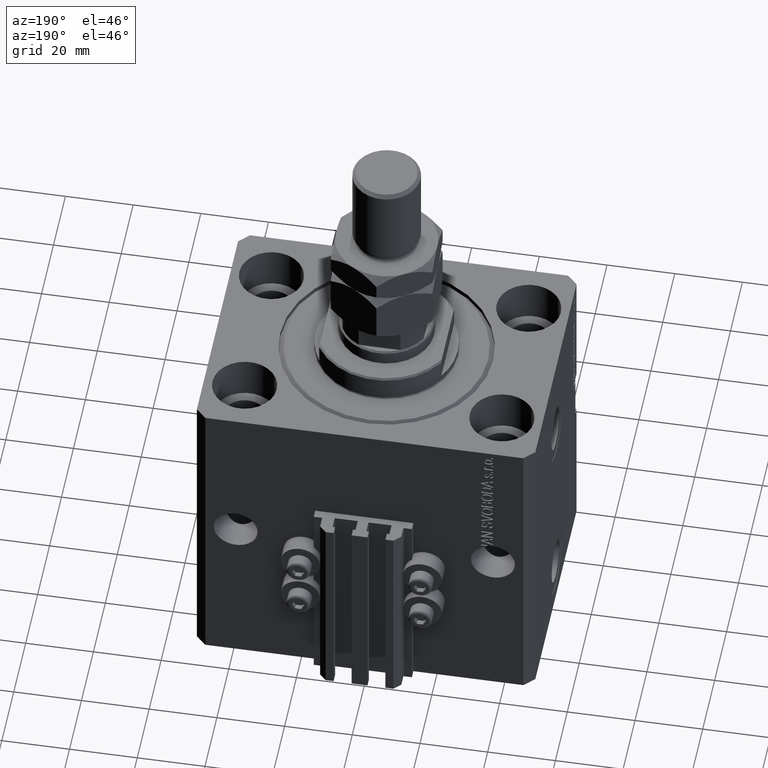
[diagram: clean part render]
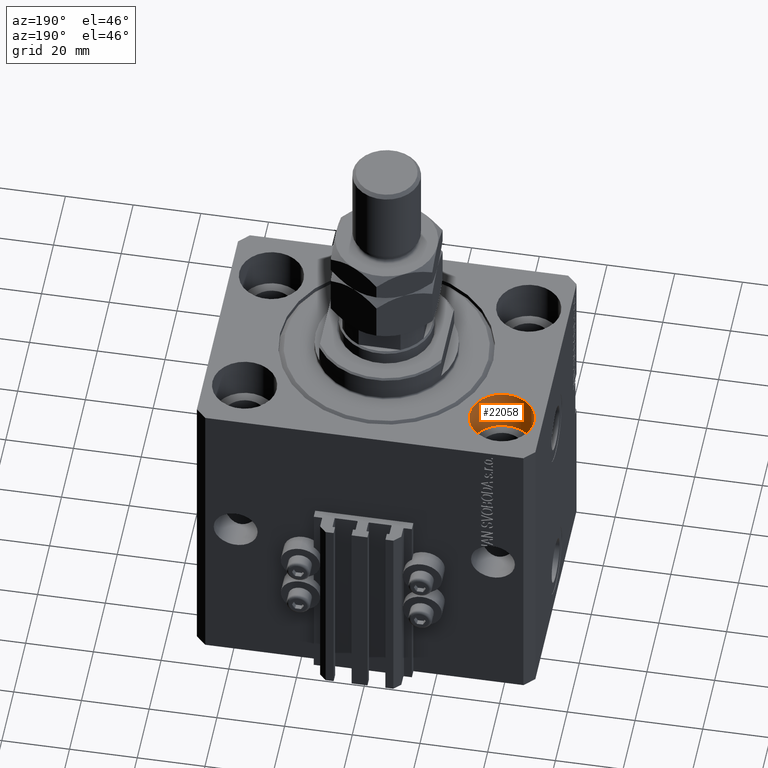
[diagram: same view with one face highlighted and labeled with its STEP entity id]
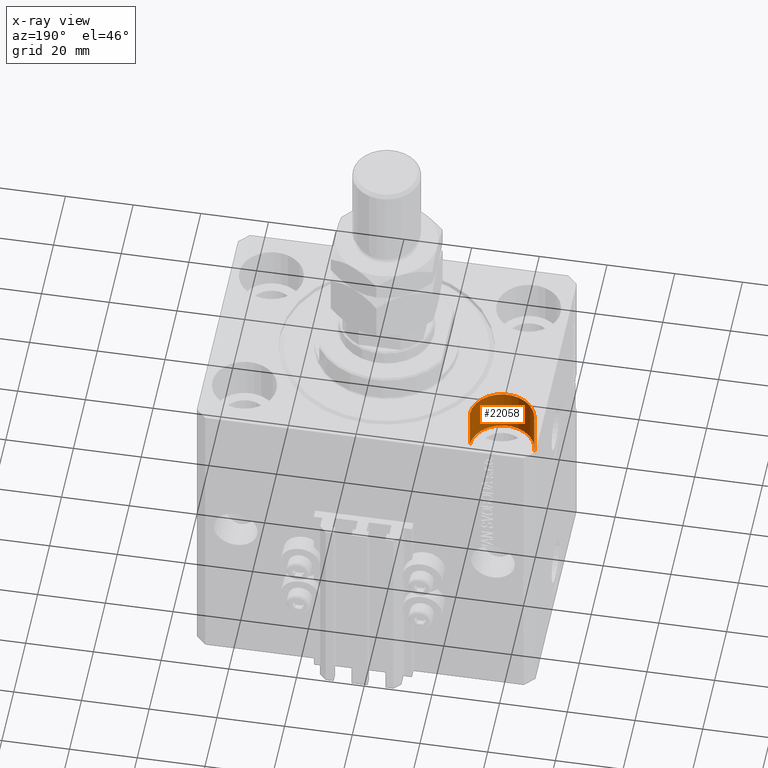
[diagram: x-ray of the same camera — body ghosted, the highlighted face saturated]
A machine part, auxiliary view. The second image highlights one B-rep face of the part: STEP entity #22058.
The next image is the same camera in x-ray: the body ghosted, the highlighted face saturated — about 0% of this face is hidden behind the body in this view.
In plain terms, the highlighted cylindrical surface (edge-blend (fillet) strip) has radius 9.5 mm, axis along (0, 0, 1).
Its self-contained STEP definition (entity closure, byte-faithful):
#762 = CARTESIAN_POINT ( 'NONE',  ( -38.00000000000000711, 22.50000000000000000, 0.000000000000000000 ) ) ;
#1781 = CIRCLE ( 'NONE', #11332, 9.500000000000001776 ) ;
#2618 = DIRECTION ( 'NONE',  ( 1.000000000000000000, 0.000000000000000000, 0.000000000000000000 ) ) ;
#5534 = CARTESIAN_POINT ( 'NONE',  ( -28.50000000000000355, 22.50000000000000000, -13.00000000000000000 ) ) ;
#6734 = VERTEX_POINT ( 'NONE', #32568 ) ;
#6761 = DIRECTION ( 'NONE',  ( 1.000000000000000000, 0.000000000000000000, 0.000000000000000000 ) ) ;
#10100 = CYLINDRICAL_SURFACE ( 'NONE', #33337, 9.500000000000001776 ) ;
#10439 = LINE ( 'NONE', #25096, #27518 ) ;
#11332 = AXIS2_PLACEMENT_3D ( 'NONE', #762, #31136, #35118 ) ;
#12807 = ORIENTED_EDGE ( 'NONE', *, *, #26469, .T. ) ;
#14069 = DIRECTION ( 'NONE',  ( -0.000000000000000000, -0.000000000000000000, 1.000000000000000000 ) ) ;
#16362 = VERTEX_POINT ( 'NONE', #27674 ) ;
#18387 = EDGE_CURVE ( 'NONE', #18766, #16362, #10439, .T. ) ;
#18766 = VERTEX_POINT ( 'NONE', #5534 ) ;
#22058 = ADVANCED_FACE ( 'NONE', ( #44692 ), #10100, .F. ) ;
#23012 = VECTOR ( 'NONE', #30041, 1000.000000000000000 ) ;
#25096 = CARTESIAN_POINT ( 'NONE',  ( -28.50000000000000355, 22.50000000000000000, -13.00000000000000000 ) ) ;
#25659 = CARTESIAN_POINT ( 'NONE',  ( -38.00000000000000711, 22.50000000000000000, -13.00000000000000000 ) ) ;
#26469 = EDGE_CURVE ( 'NONE', #30077, #6734, #37762, .T. ) ;
#26681 = CIRCLE ( 'NONE', #33043, 9.500000000000001776 ) ;
#27518 = VECTOR ( 'NONE', #40294, 1000.000000000000000 ) ;
#27674 = CARTESIAN_POINT ( 'NONE',  ( -28.50000000000000355, 22.50000000000000000, 0.000000000000000000 ) ) ;
#28222 = ORIENTED_EDGE ( 'NONE', *, *, #43249, .F. ) ;
#30041 = DIRECTION ( 'NONE',  ( -0.000000000000000000, -0.000000000000000000, 1.000000000000000000 ) ) ;
#30077 = VERTEX_POINT ( 'NONE', #42150 ) ;
#31136 = DIRECTION ( 'NONE',  ( 0.000000000000000000, 0.000000000000000000, 1.000000000000000000 ) ) ;
#32568 = CARTESIAN_POINT ( 'NONE',  ( -47.50000000000000711, 22.50000000000000000, 0.000000000000000000 ) ) ;
#32570 = EDGE_CURVE ( 'NONE', #6734, #16362, #1781, .T. ) ;
#33043 = AXIS2_PLACEMENT_3D ( 'NONE', #25659, #40857, #6761 ) ;
#33337 = AXIS2_PLACEMENT_3D ( 'NONE', #36722, #14069, #2618 ) ;
#33952 = ORIENTED_EDGE ( 'NONE', *, *, #18387, .F. ) ;
#34016 = CARTESIAN_POINT ( 'NONE',  ( -47.50000000000000711, 22.50000000000000000, -13.00000000000000000 ) ) ;
#35118 = DIRECTION ( 'NONE',  ( 1.000000000000000000, 0.000000000000000000, 0.000000000000000000 ) ) ;
#36722 = CARTESIAN_POINT ( 'NONE',  ( -38.00000000000000711, 22.50000000000000000, -13.00000000000000000 ) ) ;
#37762 = LINE ( 'NONE', #34016, #23012 ) ;
#38362 = EDGE_LOOP ( 'NONE', ( #28222, #12807, #47127, #33952 ) ) ;
#40294 = DIRECTION ( 'NONE',  ( -0.000000000000000000, -0.000000000000000000, 1.000000000000000000 ) ) ;
#40857 = DIRECTION ( 'NONE',  ( 0.000000000000000000, 0.000000000000000000, 1.000000000000000000 ) ) ;
#42150 = CARTESIAN_POINT ( 'NONE',  ( -47.50000000000000711, 22.50000000000000000, -13.00000000000000000 ) ) ;
#43249 = EDGE_CURVE ( 'NONE', #30077, #18766, #26681, .T. ) ;
#44692 = FACE_OUTER_BOUND ( 'NONE', #38362, .T. ) ;
#47127 = ORIENTED_EDGE ( 'NONE', *, *, #32570, .T. ) ;